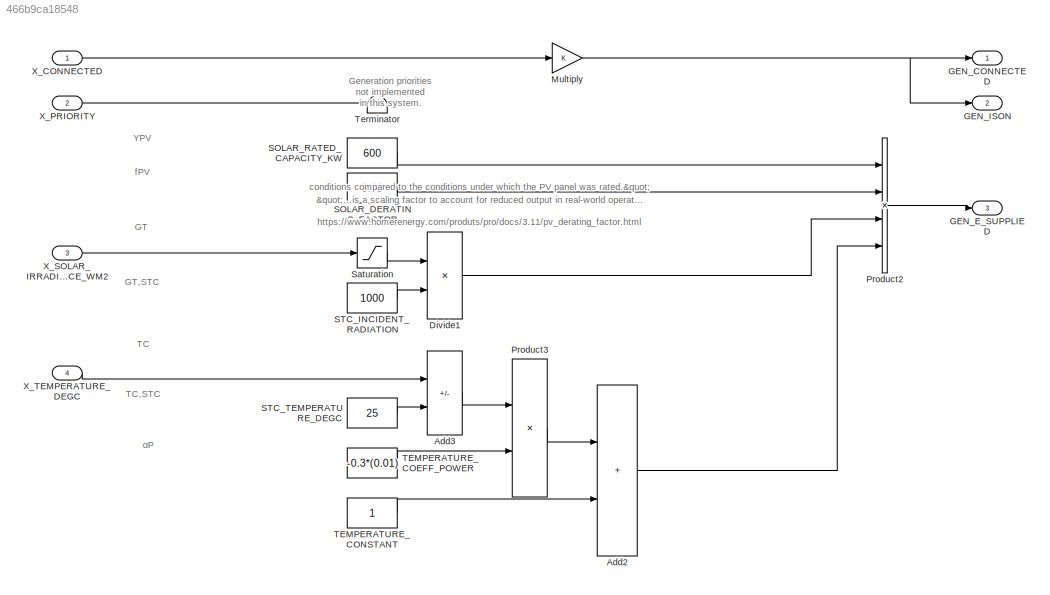
MODEL slx_466b9ca18548
KIND model
CONFIG AbsTol = auto
CONFIG EnableMultiTasking = off
CONFIG FixedStep = 1
CONFIG MaxStep = auto
CONFIG MinStep = auto
CONFIG RelTol = 1e-3
CONFIG SampleTimeConstraint = Unconstrained
CONFIG SolverName = FixedStepDiscrete
CONFIG StartTime = 1
CONFIG StopTime = T.sim_tn
BLOCK [Sum] Add2
  IconShape = rectangular
  Ports = [2, 1]
BLOCK [Sum] Add3
  IconShape = rectangular
  Inputs = +-
  Ports = [2, 1]
BLOCK [Product] Divide1
  Inputs = */
  Ports = [2, 1]
BLOCK [Outport] GEN_CONNECTED
BLOCK [Outport] GEN_E_SUPPLIED
  Port = 3
BLOCK [Outport] GEN_ISON
  Port = 2
BLOCK [Gain] Multiply
BLOCK [Product] Product2
  Inputs = 4
  Ports = [4, 1]
BLOCK [Product] Product3
  Ports = [2, 1]
BLOCK [Constant] SOLAR_DERATING_FACTOR
  NameLocation = left
  Value = 0.99
BLOCK [Constant] SOLAR_RATED_CAPACITY_KW
  NameLocation = left
  Value = 600
BLOCK [Constant] STC_INCIDENT_RADIATION
  NameLocation = left
  Value = 1000
BLOCK [Constant] STC_TEMPERATURE_DEGC
  NameLocation = left
  Value = 25
BLOCK [Saturate] Saturation
  LowerLimit = 0
  UpperLimit = inf
BLOCK [Constant] TEMPERATURE_COEFF_POWER
  NameLocation = left
  Value = -0.3*(0.01)
BLOCK [Constant] TEMPERATURE_CONSTANT
  NameLocation = left
BLOCK [Terminator] Terminator
BLOCK [Inport] X_CONNECTED
BLOCK [Inport] X_PRIORITY
  Port = 2
BLOCK [Inport] X_SOLAR_IRRADIANCE_WM2
  Port = 3
BLOCK [Inport] X_TEMPERATURE_DEGC
  Port = 4
ANNOTATION (root): "...is a scaling factor to account for reduced output in real-world operating conditions compared to the conditions under which the PV panel was rated." https://www.homerenergy.com/produts/pro/docs/3.11/pv_derating_factor.html
ANNOTATION (root): Generation priorities not implemented in this system.
ANNOTATION (root): G T,STC
ANNOTATION (root): G T
ANNOTATION (root): T C,STC
ANNOTATION (root): T C
ANNOTATION (root): Y PV
ANNOTATION (root): f PV
ANNOTATION (root): α P
LINE Add2:1 -> Product2:4
LINE Add3:1 -> Product3:1
LINE Divide1:1 -> Product2:3
NET Multiply:1 -> GEN_CONNECTED:1, GEN_ISON:1
LINE Product2:1 -> GEN_E_SUPPLIED:1
LINE Product3:1 -> Add2:1
LINE SOLAR_DERATING_FACTOR:1 -> Product2:2
LINE SOLAR_RATED_CAPACITY_KW:1 -> Product2:1
LINE STC_INCIDENT_RADIATION:1 -> Divide1:2
LINE STC_TEMPERATURE_DEGC:1 -> Add3:2
LINE Saturation:1 -> Divide1:1
LINE TEMPERATURE_COEFF_POWER:1 -> Product3:2
LINE TEMPERATURE_CONSTANT:1 -> Add2:2
LINE X_CONNECTED:1 -> Multiply:1
LINE X_PRIORITY:1 -> Terminator:1
LINE X_SOLAR_IRRADIANCE_WM2:1 -> Saturation:1
LINE X_TEMPERATURE_DEGC:1 -> Add3:1
note: NET lines group one-source signal fan-out (src -> all destinations, sorted); 1:1 wires keep LINE
